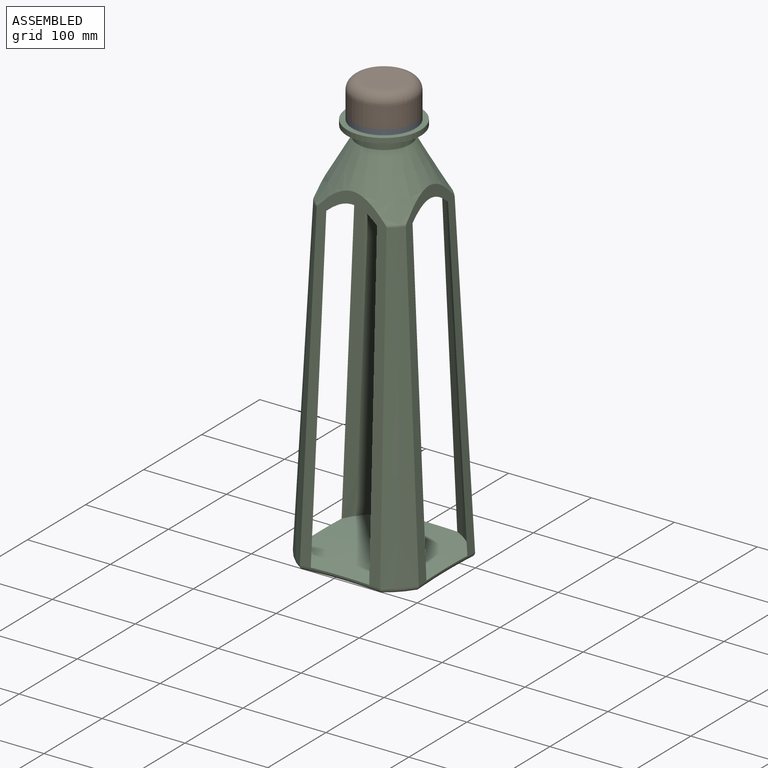
[diagram: assembled view]
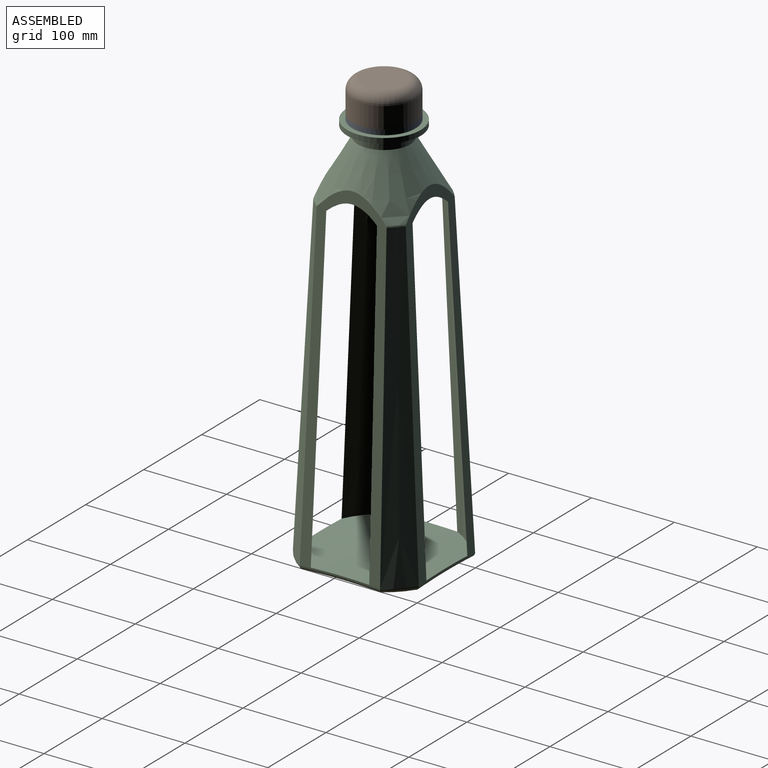
[diagram: assembled view, second angle]
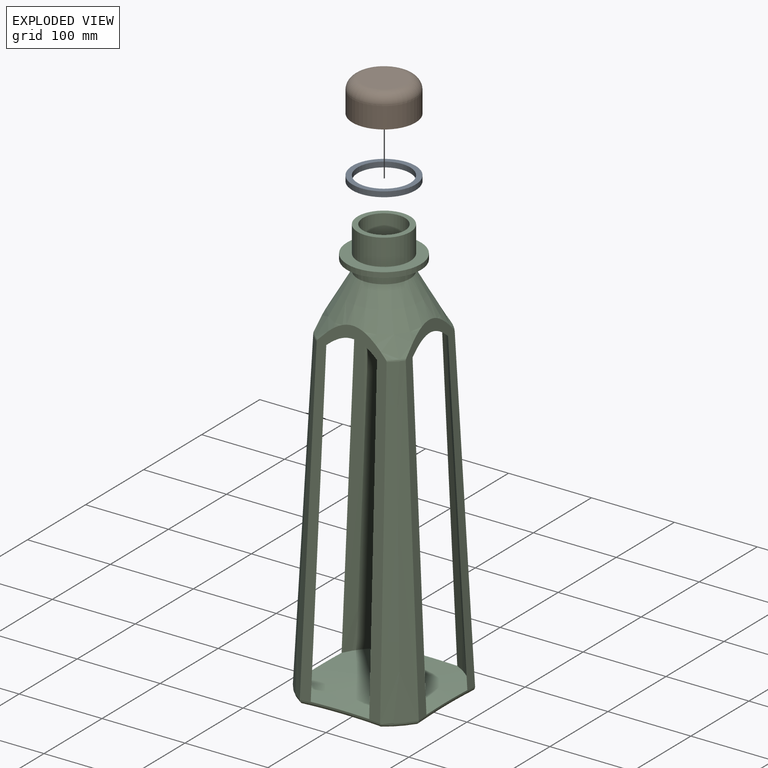
[diagram: exploded view]
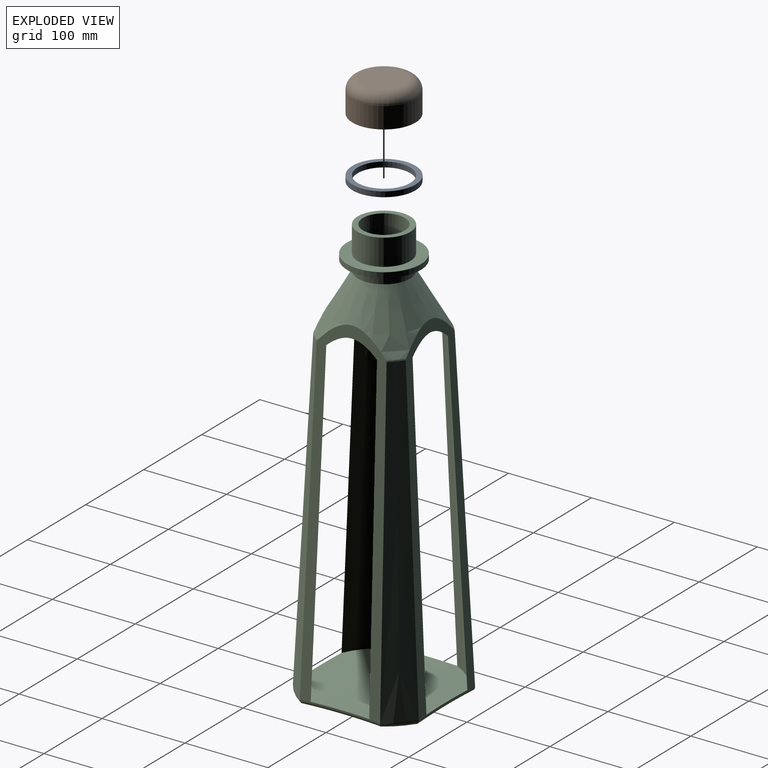
[diagram: exploded view, second angle]
ASSEMBLY  parts=3 mates=2
PART A: 4 faces, bbox 76.2x76.2x6.4 mm
  f0: cylinder r=31.75mm len=63.5mm, axis (0,0,1), area 1266.8mm2, adj f1,f3
  f1: plane 76.2x76.2mm, normal (0,0,-1), area 1393.4mm2, adj f0,f2
  f2: cylinder r=38.1mm len=76.2mm, axis (0,0,1), area 1520.1mm2, adj f1,f3
  f3: plane 76.2x76.2mm, normal (0,0,1), area 1393.4mm2, adj f0,f2
PART B: 7 faces, bbox 82.5x82.5x38.1 mm
  f0: plane 50.8x50.8mm, normal (0,0,-1), area 2026.8mm2, adj f1
  f1: torus R=25.4mm, axis (0,0,-1), area 1845.2mm2, adj f0,f2
  f2: cylinder r=31.75mm len=63.5mm, axis (0,0,-1), area 5067.1mm2, adj f1,f3
  f3: plane 76.2x76.2mm, normal (0,0,-1), area 1393.4mm2, adj f2,f4
  f4: cylinder r=38.1mm len=76.2mm, axis (0,0,-1), area 6080.5mm2, adj f3,f5
  f5: torus R=25.4mm, axis (0,0,-1), area 4197.2mm2, adj f4,f6
  f6: plane 50.8x50.8mm, normal (0,0,1), area 2026.8mm2, adj f5
PART C: 37 faces, bbox 203.3x203.3x542.8 mm
  f0: cone r=83.63mm half-angle=85deg, axis (0,0,-1), area 21603.2mm2, adj f8,f9,f10,f11,f12,f21,f22,f23
  f1: cone r=90.35mm half-angle=85deg, axis (0,0,-1), area 18667.3mm2, adj f13,f25,f26,f27,f28,f29,f30,f31
  f2: cone r=69.85mm half-angle=3deg, axis (0,0,-1), area 11024.3mm2, adj f23,f24,f25,f35
  f3: cone r=69.85mm half-angle=3deg, axis (0,0,-1), area 11024.3mm2, adj f22,f23,f29,f36
  f4: cone r=69.85mm half-angle=3deg, axis (0,0,-1), area 11024.3mm2, adj f21,f24,f28,f34
  f5: cone r=69.85mm half-angle=3deg, axis (0,0,-1), area 11024.3mm2, adj f21,f22,f32,f33
  f6: cone r=31.75mm half-angle=30deg, axis (0,0,-1), area 17102.9mm2, adj f14,f21,f22,f23,f24,f33,f34,f35
  f7: cone r=25.4mm half-angle=30deg, axis (0,0,-1), area 21352.4mm2, adj f8,f9,f10,f11,f20,f21,f22,f23
  f8: cone r=63.59mm half-angle=3deg, axis (0,0,-1), area 17991mm2, adj f0,f7,f23,f24
  f9: cone r=63.59mm half-angle=3deg, axis (0,0,-1), area 17991mm2, adj f0,f7,f22,f23
  f10: cone r=63.59mm half-angle=3deg, axis (0,0,-1), area 17991mm2, adj f0,f7,f21,f24
  f11: cone r=63.59mm half-angle=3deg, axis (0,0,-1), area 17991mm2, adj f0,f7,f21,f22
  f12: revolved ~5.05x1.12mm, area 0mm2, adj f0
  f13: revolved ~17.78x17.78mm, area 0mm2, adj f1
  f14: cylinder r=31.75mm len=63.5mm, axis (0,0,1), area 2533.5mm2, adj f6,f15
  f15: plane 88.9x88.9mm, normal (0,0,-1), area 3040.2mm2, adj f14,f16
  f16: cylinder r=44.45mm len=88.9mm, axis (0,0,1), area 1773.5mm2, adj f15,f17
  f17: plane 88.9x88.9mm, normal (0,0,1), area 3040.2mm2, adj f16,f18
  f18: cylinder r=31.75mm len=63.5mm, axis (0,0,1), area 6333.8mm2, adj f17,f19
  f19: plane 63.5x63.5mm, normal (0,0,1), area 1140.1mm2, adj f18,f20
  f20: cylinder r=25.4mm len=52.5mm, axis (0,0,1), area 8378.9mm2, adj f7,f19
  f21: plane 446.72x131.22mm, normal (0,-1,0.05), area 10639.7mm2, adj f0,f4,f5,f6,f7,f10,f11,f28
  f22: plane 446.72x131.22mm, normal (1,0,0.05), area 10639.7mm2, adj f0,f3,f5,f6,f7,f9,f11,f29
  f23: plane 446.72x131.22mm, normal (0,1,0.05), area 10636.6mm2, adj f0,f2,f3,f6,f7,f8,f9,f25
  f24: plane 446.72x131.22mm, normal (-1,0,0.05), area 10636.6mm2, adj f0,f2,f4,f6,f7,f8,f10,f25
  f25: torus R=84.97mm, axis (0,0,-1), area 324.1mm2, adj f1,f2,f23,f24,f26,f27
  f26: bspline ~118.19x7.59mm, area 823.9mm2, adj f1,f24,f25,f28
  f27: bspline ~118.19x7.59mm, area 823.9mm2, adj f1,f23,f25,f29
  f28: torus R=84.97mm, axis (0,0,-1), area 324.1mm2, adj f1,f4,f21,f24,f26,f30
  f29: torus R=84.97mm, axis (0,0,-1), area 324.1mm2, adj f1,f3,f22,f23,f27,f31
  f30: bspline ~118.19x7.59mm, area 823.9mm2, adj f1,f21,f28,f32
  f31: bspline ~118.19x7.59mm, area 823.9mm2, adj f1,f22,f29,f32
  f32: torus R=84.97mm, axis (0,0,-1), area 324.1mm2, adj f1,f5,f21,f22,f30,f31
  f33: torus R=64.84mm, axis (0,0,-1), area 47.1mm2, adj f5,f6,f21,f22
  f34: torus R=64.84mm, axis (0,0,-1), area 47.1mm2, adj f4,f6,f21,f24
  f35: torus R=64.84mm, axis (0,0,-1), area 47.1mm2, adj f2,f6,f23,f24
  f36: torus R=64.84mm, axis (0,0,-1), area 47.1mm2, adj f3,f6,f22,f23
PLACE A at identity
PLACE B at identity fixed
PLACE C t=(0,0,-12.7)mm
MATE fastened C.f0 <-> B.f1  axis (0,0,1) through (0,0,-12.7)mm
MATE fastened A.f0 <-> B.f1  axis (0,0,1) through (0,0,-38.1)mm
